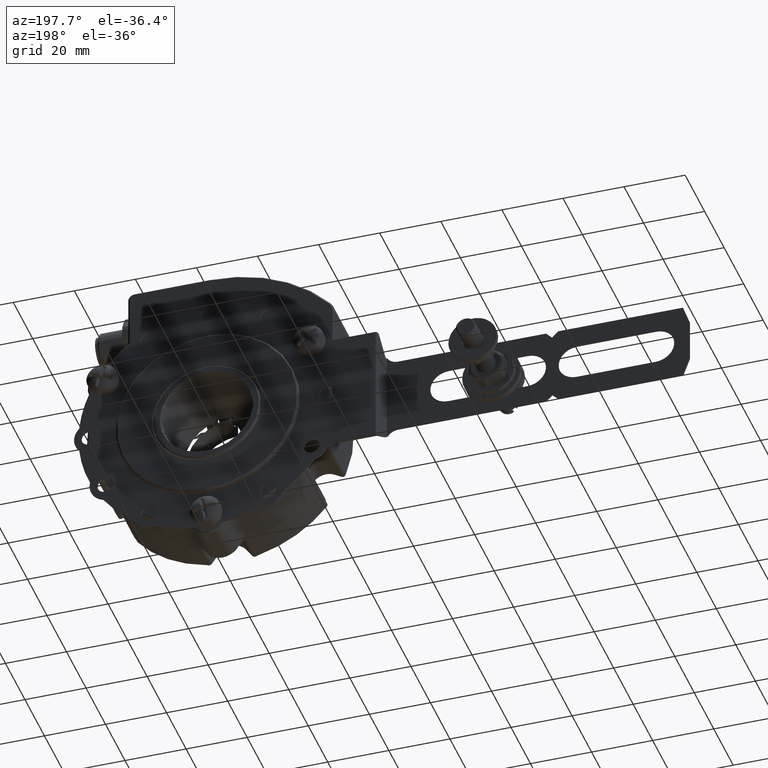
[diagram: clean part render]
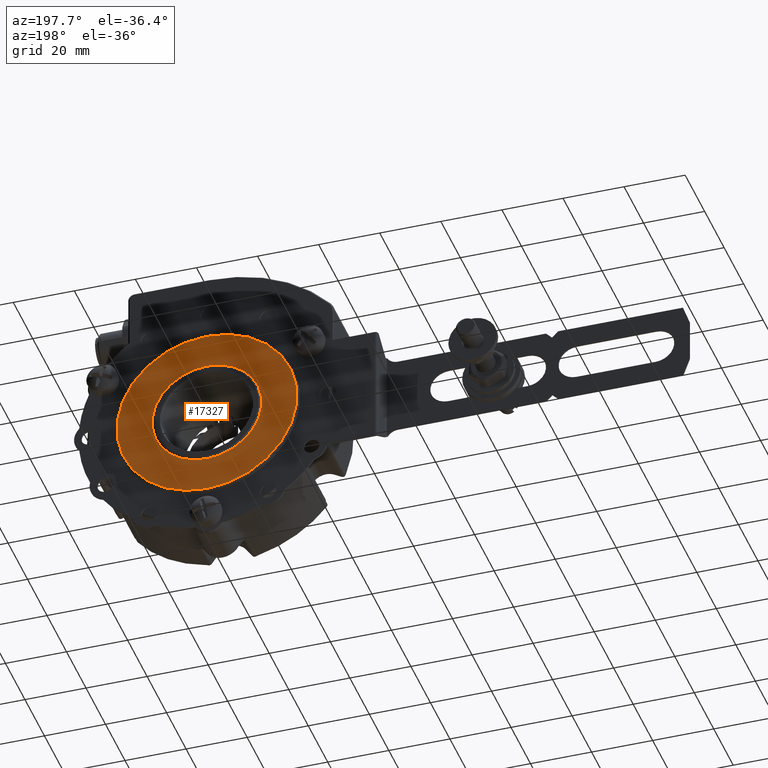
[diagram: same view with one face highlighted and labeled with its STEP entity id]
A machine part, auxiliary view. The second image highlights one B-rep face of the part: STEP entity #17327.
In plain terms, the highlighted planar face has unit normal (0, -1, 0).
Its self-contained STEP definition (entity closure, byte-faithful):
#1351 = CARTESIAN_POINT ( 'NONE',  ( 29.99999999999999300, 23.99999999999999300, 0.0000000000000000000 ) ) ;
#1759 = DIRECTION ( 'NONE',  ( -0.0000000000000000000, 1.000000000000000000, -0.0000000000000000000 ) ) ;
#2332 = AXIS2_PLACEMENT_3D ( 'NONE', #1351, #26688, #4982 ) ;
#2723 = CIRCLE ( 'NONE', #22383, 29.49999999999998600 ) ;
#3804 = DIRECTION ( 'NONE',  ( 0.0000000000000000000, -1.000000000000000000, 0.0000000000000000000 ) ) ;
#4982 = DIRECTION ( 'NONE',  ( 0.0000000000000000000, -0.0000000000000000000, -1.000000000000000000 ) ) ;
#5955 = CIRCLE ( 'NONE', #37026, 29.49999999999998600 ) ;
#9147 = EDGE_LOOP ( 'NONE', ( #40627, #35023 ) ) ;
#9718 = DIRECTION ( 'NONE',  ( 0.0000000000000000000, -1.000000000000000000, 0.0000000000000000000 ) ) ;
#9827 = AXIS2_PLACEMENT_3D ( 'NONE', #31438, #9718, #35076 ) ;
#10580 = EDGE_CURVE ( 'NONE', #33425, #13976, #5955, .T. ) ;
#13410 = VERTEX_POINT ( 'NONE', #25847 ) ;
#13976 = VERTEX_POINT ( 'NONE', #23804 ) ;
#14247 = EDGE_LOOP ( 'NONE', ( #46762, #19124 ) ) ;
#16055 = EDGE_CURVE ( 'NONE', #13410, #44683, #35689, .T. ) ;
#16543 = CIRCLE ( 'NONE', #9827, 17.94999999999999200 ) ;
#17327 = ADVANCED_FACE ( 'NONE', ( #44113, #24834 ), #23042, .F. ) ;
#17656 = CARTESIAN_POINT ( 'NONE',  ( 3.643324227463373800E-015, 23.99999999999999300, 29.49999999999998600 ) ) ;
#18607 = DIRECTION ( 'NONE',  ( -0.0000000000000000000, 1.000000000000000000, -0.0000000000000000000 ) ) ;
#19124 = ORIENTED_EDGE ( 'NONE', *, *, #43160, .T. ) ;
#22093 = CARTESIAN_POINT ( 'NONE',  ( 2.198241004469498400E-015, 23.99999999999999300, -17.94999999999999200 ) ) ;
#22383 = AXIS2_PLACEMENT_3D ( 'NONE', #40328, #18607, #43945 ) ;
#23042 = PLANE ( 'NONE',  #2332 ) ;
#23447 = CARTESIAN_POINT ( 'NONE',  ( 0.0000000000000000000, 23.99999999999999300, 0.0000000000000000000 ) ) ;
#23804 = CARTESIAN_POINT ( 'NONE',  ( 0.0000000000000000000, 23.99999999999999300, -29.49999999999998600 ) ) ;
#24834 = FACE_BOUND ( 'NONE', #14247, .T. ) ;
#25528 = CARTESIAN_POINT ( 'NONE',  ( 0.0000000000000000000, 23.99999999999999300, 0.0000000000000000000 ) ) ;
#25847 = CARTESIAN_POINT ( 'NONE',  ( 0.0000000000000000000, 23.99999999999999300, 17.94999999999999200 ) ) ;
#26688 = DIRECTION ( 'NONE',  ( 0.0000000000000000000, -1.000000000000000000, 0.0000000000000000000 ) ) ;
#27090 = DIRECTION ( 'NONE',  ( 0.0000000000000000000, 0.0000000000000000000, -1.000000000000000000 ) ) ;
#29143 = DIRECTION ( 'NONE',  ( 0.0000000000000000000, 0.0000000000000000000, -1.000000000000000000 ) ) ;
#31438 = CARTESIAN_POINT ( 'NONE',  ( 0.0000000000000000000, 23.99999999999999300, 0.0000000000000000000 ) ) ;
#33425 = VERTEX_POINT ( 'NONE', #17656 ) ;
#33558 = EDGE_CURVE ( 'NONE', #13976, #33425, #2723, .T. ) ;
#35023 = ORIENTED_EDGE ( 'NONE', *, *, #10580, .T. ) ;
#35076 = DIRECTION ( 'NONE',  ( 0.0000000000000000000, 0.0000000000000000000, -1.000000000000000000 ) ) ;
#35689 = CIRCLE ( 'NONE', #44184, 17.94999999999999200 ) ;
#37026 = AXIS2_PLACEMENT_3D ( 'NONE', #23447, #1759, #27090 ) ;
#40328 = CARTESIAN_POINT ( 'NONE',  ( 0.0000000000000000000, 23.99999999999999300, 0.0000000000000000000 ) ) ;
#40627 = ORIENTED_EDGE ( 'NONE', *, *, #33558, .T. ) ;
#43160 = EDGE_CURVE ( 'NONE', #44683, #13410, #16543, .T. ) ;
#43945 = DIRECTION ( 'NONE',  ( 0.0000000000000000000, 0.0000000000000000000, -1.000000000000000000 ) ) ;
#44113 = FACE_OUTER_BOUND ( 'NONE', #9147, .T. ) ;
#44184 = AXIS2_PLACEMENT_3D ( 'NONE', #25528, #3804, #29143 ) ;
#44683 = VERTEX_POINT ( 'NONE', #22093 ) ;
#46762 = ORIENTED_EDGE ( 'NONE', *, *, #16055, .T. ) ;